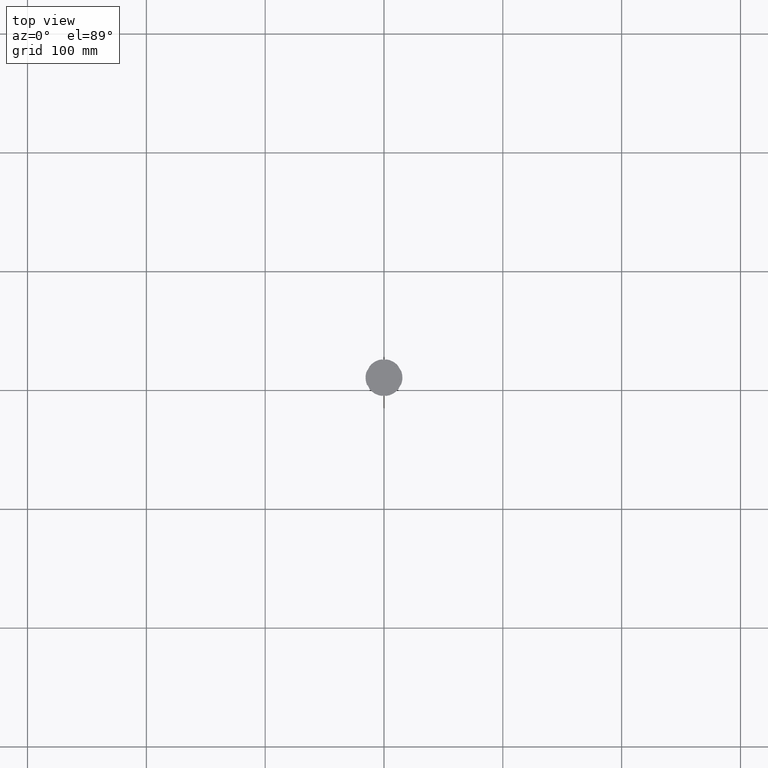
[diagram: clean part render]
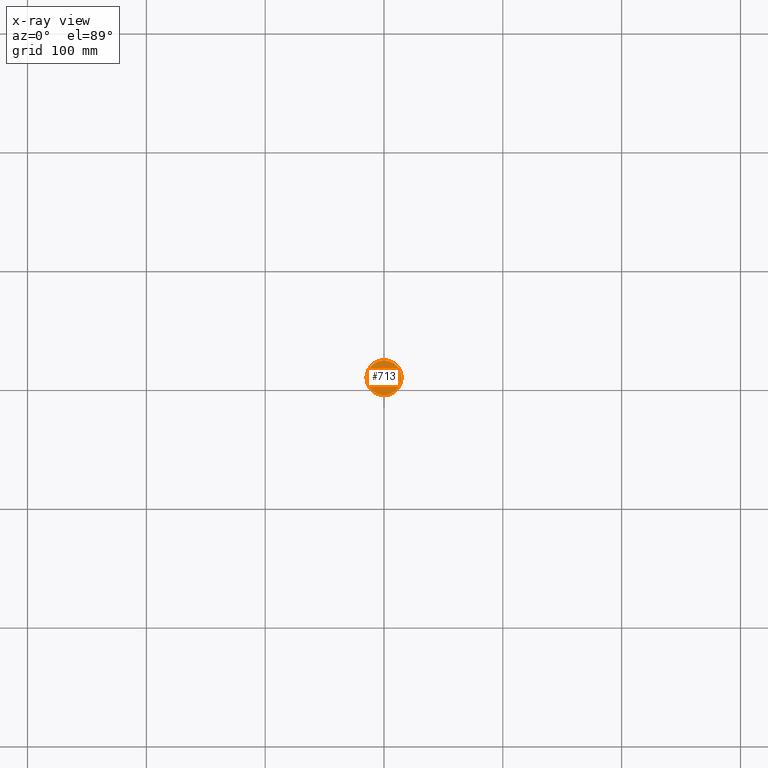
[diagram: x-ray — body ghosted, one internal face saturated and labeled with its STEP entity id]
A machine part, top view, then the same camera in x-ray: the body is ghosted and one INTERNAL B-rep face — a face not visible from any outside direction — is saturated and labeled: STEP entity #713.
In plain terms, the highlighted planar face has unit normal (0, 0, -1).
Its self-contained STEP definition (entity closure, byte-faithful):
#226 = CIRCLE ( 'NONE', #2502, 14.70000000000000107 ) ;
#297 = DIRECTION ( 'NONE',  ( -1.000000000000000000, 0.000000000000000000, 0.000000000000000000 ) ) ;
#513 = DIRECTION ( 'NONE',  ( -0.000000000000000000, -0.000000000000000000, 1.000000000000000000 ) ) ;
#713 = ADVANCED_FACE ( 'NONE', ( #939 ), #2321, .F. ) ;
#922 = CARTESIAN_POINT ( 'NONE',  ( 0.000000000000000000, 0.000000000000000000, -12.00000000000000000 ) ) ;
#939 = FACE_OUTER_BOUND ( 'NONE', #2371, .T. ) ;
#1071 = ORIENTED_EDGE ( 'NONE', *, *, #1345, .T. ) ;
#1147 = VERTEX_POINT ( 'NONE', #1801 ) ;
#1226 = ORIENTED_EDGE ( 'NONE', *, *, #1583, .T. ) ;
#1345 = EDGE_CURVE ( 'NONE', #1147, #1573, #1575, .T. ) ;
#1372 = DIRECTION ( 'NONE',  ( -1.000000000000000000, 0.000000000000000000, -0.000000000000000000 ) ) ;
#1394 = CARTESIAN_POINT ( 'NONE',  ( -14.70000000000000107, 0.000000000000000000, -12.00000000000000000 ) ) ;
#1513 = AXIS2_PLACEMENT_3D ( 'NONE', #2062, #2503, #1372 ) ;
#1573 = VERTEX_POINT ( 'NONE', #1394 ) ;
#1575 = CIRCLE ( 'NONE', #2643, 14.70000000000000107 ) ;
#1583 = EDGE_CURVE ( 'NONE', #1573, #1147, #226, .T. ) ;
#1801 = CARTESIAN_POINT ( 'NONE',  ( 14.70000000000000107, 1.818600496733819553E-15, -12.00000000000000000 ) ) ;
#2062 = CARTESIAN_POINT ( 'NONE',  ( 0.000000000000000000, 0.000000000000000000, -12.00000000000000000 ) ) ;
#2321 = PLANE ( 'NONE',  #1513 ) ;
#2371 = EDGE_LOOP ( 'NONE', ( #1226, #1071 ) ) ;
#2502 = AXIS2_PLACEMENT_3D ( 'NONE', #922, #513, #297 ) ;
#2503 = DIRECTION ( 'NONE',  ( 0.000000000000000000, 0.000000000000000000, -1.000000000000000000 ) ) ;
#2528 = DIRECTION ( 'NONE',  ( -0.000000000000000000, -0.000000000000000000, 1.000000000000000000 ) ) ;
#2643 = AXIS2_PLACEMENT_3D ( 'NONE', #2817, #2528, #2779 ) ;
#2779 = DIRECTION ( 'NONE',  ( -1.000000000000000000, 0.000000000000000000, 0.000000000000000000 ) ) ;
#2817 = CARTESIAN_POINT ( 'NONE',  ( 0.000000000000000000, 0.000000000000000000, -12.00000000000000000 ) ) ;